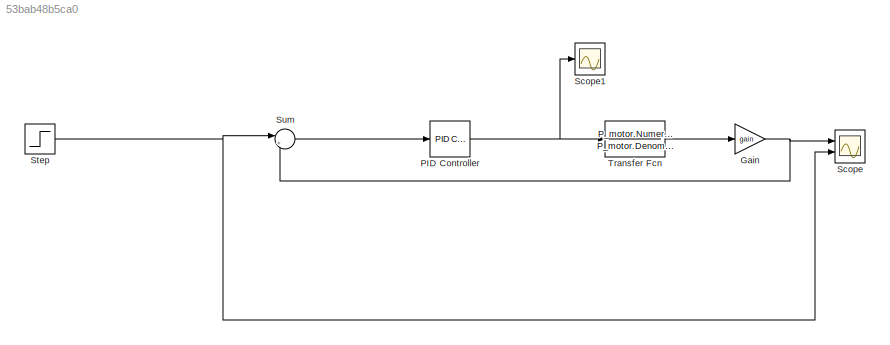
MODEL slx_53bab48b5ca0
KIND model
CONFIG AbsTol = auto
CONFIG EnableMultiTasking = off
CONFIG FixedStep = auto
CONFIG MaxStep = auto
CONFIG MinStep = auto
CONFIG RelTol = 1e-3
CONFIG SampleTimeConstraint = Unconstrained
CONFIG SolverName = VariableStepAuto
CONFIG StartTime = 0.0
CONFIG StopTime = 10.0
BLOCK [Gain] Gain
  Gain = gain
BLOCK [Reference] PID Controller  REF=pid_lib/PID Controller
  Ports = [1, 1]
  SourceBlock = pid_lib/PID Controller
  SourceProductBaseCode = SL
  SourceType = PID 1dof
BLOCK [Scope] Scope
  Floating = off
  NumInputPorts = 2
  Ports = [2]
  ScopeSpecificationString = Simulink.scopes.TimeScopeBlockCfg('CurrentConfiguration', extmgr.ConfigurationSet(extmgr.Configuration('Core','General UI',true),extmgr.Configuration('Core','Source UI',true),extmgr.Configuration('Sources','WiredSimulink',true),extmgr.Configuration('Visuals','Time Domain',true,'SerializedDisplays',{struct('MinYLimReal','-0.10765','MaxYLimReal','6.30315','YLabelReal','','MinYLimMag','0.00000','MaxY...<+2023ch>
BLOCK [Scope] Scope1
  Floating = off
  NumInputPorts = 1
  Ports = [1]
  ScopeSpecificationString = Simulink.scopes.TimeScopeBlockCfg('CurrentConfiguration', extmgr.ConfigurationSet(extmgr.Configuration('Core','General UI',true),extmgr.Configuration('Core','Source UI',true),extmgr.Configuration('Sources','WiredSimulink',true,'DataLoggingVariableName','ScopeData1'),extmgr.Configuration('Visuals','Time Domain',true,'SerializedDisplays',{struct('MinYLimReal','-20509.67345','MaxYLimReal','41901.7430...<+1452ch>
BLOCK [Step] Step
  SampleTime = 0
BLOCK [Sum] Sum
  Inputs = |+-
  Ports = [2, 1]
BLOCK [TransferFcn] Transfer Fcn
  Denominator = P_motor.Denominator{1,1}
  Numerator = P_motor.Numerator{1,1}
NET Gain:1 -> Scope:1, Sum:2
NET PID Controller:1 -> Scope1:1, Transfer Fcn:1
NET Step:1 -> Scope:2, Sum:1
LINE Sum:1 -> PID Controller:1
LINE Transfer Fcn:1 -> Gain:1
note: NET lines group one-source signal fan-out (src -> all destinations, sorted); 1:1 wires keep LINE
